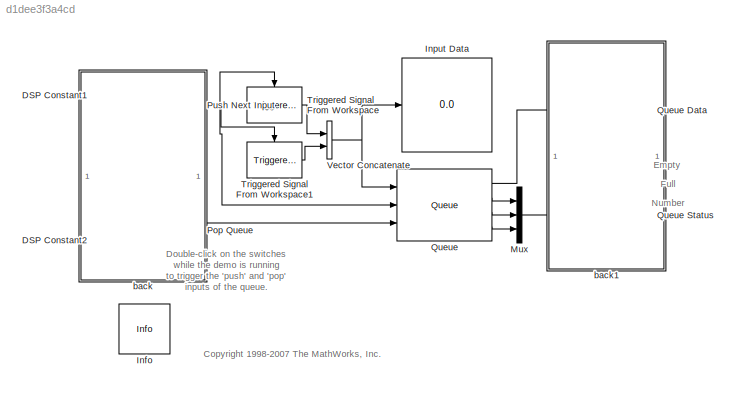
MODEL slx_d1dee3f3a4cd
KIND model
CONFIG AbsTol = auto
CONFIG EnableMultiTasking = on
CONFIG FixedStep = auto
CONFIG MaxStep = auto
CONFIG MinStep = auto
CONFIG RelTol = 1e-3
CONFIG SampleTimeConstraint = Unconstrained
CONFIG Solver = FixedStepDiscrete
CONFIG SolverName = FixedStepDiscrete
CONFIG StartTime = 0.0
CONFIG StopTime = inf
BLOCK [Constant] DSP Constant1
  SampleTime = 4
BLOCK [Constant] DSP Constant2
  SampleTime = 4
  Value = 0
BLOCK [Reference] Info  REF=dspmisc/Info
  Ports = []
  SourceBlock = dspmisc/Info
  SourceProductBaseCode = DS
  SourceProductName = DSP System Toolbox
  SourceType = Info
BLOCK [Display] Input Data
  Decimation = 1
  Ports = [1]
BLOCK [Mux] Mux
  DisplayOption = bar
  Inputs = 3
  Ports = [3, 1]
BLOCK [ManualSwitch] Pop Queue
  CurrentSetting = 0
BLOCK [ManualSwitch] Push Next Input
  CurrentSetting = 0
BLOCK [Reference] Queue  REF=dspbuff3/Queue
  Ports = [3, 4]
  SourceBlock = dspbuff3/Queue
  SourceProductBaseCode = DS
  SourceProductName = DSP System Toolbox
  SourceType = Queue
BLOCK [Display] Queue Data
  Decimation = 1
  Ports = [1]
BLOCK [Display] Queue Status
  Decimation = 1
  Ports = [1]
BLOCK [Reference] Triggered Signal From Workspace  REF=dspsigops/Triggered Signal
From Workspace
  Ports = [0, 1, 0, 1]
  SourceBlock = dspsigops/Triggered Signal\nFrom Workspace
  SourceProductBaseCode = DS
  SourceProductName = DSP System Toolbox
  SourceType = Triggered Signal From Workspace
BLOCK [Reference] Triggered Signal From Workspace1  REF=dspsigops/Triggered Signal
From Workspace
  Ports = [0, 1, 0, 1]
  SourceBlock = dspsigops/Triggered Signal\nFrom Workspace
  SourceProductBaseCode = DS
  SourceProductName = DSP System Toolbox
  SourceType = Triggered Signal From Workspace
BLOCK [Concatenate] Vector Concatenate
  Ports = [2, 1]
BLOCK [SubSystem] back
  Ports = []
  RequestExecContextInheritance = off
BLOCK [SubSystem] back1
  Ports = []
  RequestExecContextInheritance = off
ANNOTATION (root): <copyright redacted>
ANNOTATION (root): Double-click on the switches while the demo is running to trigger the 'push' and 'pop' inputs of the queue.
ANNOTATION (root): Empty
ANNOTATION (root): Full
ANNOTATION (root): Number
NET DSP Constant1:1 -> Pop Queue:1, Push Next Input:1
NET DSP Constant2:1 -> Pop Queue:2, Push Next Input:2
LINE Mux:1 -> Queue Status:1
LINE Pop Queue:1 -> Queue:3
NET Push Next Input:1 -> Queue:2, Triggered Signal From Workspace1:trigger, Triggered Signal From Workspace:trigger
LINE Queue:1 -> Queue Data:1
LINE Queue:2 -> Mux:1
LINE Queue:3 -> Mux:2
LINE Queue:4 -> Mux:3
LINE Triggered Signal From Workspace1:1 -> Vector Concatenate:2
LINE Triggered Signal From Workspace:1 -> Vector Concatenate:1
NET Vector Concatenate:1 -> Input Data:1, Queue:1
note: NET lines group one-source signal fan-out (src -> all destinations, sorted); 1:1 wires keep LINE
